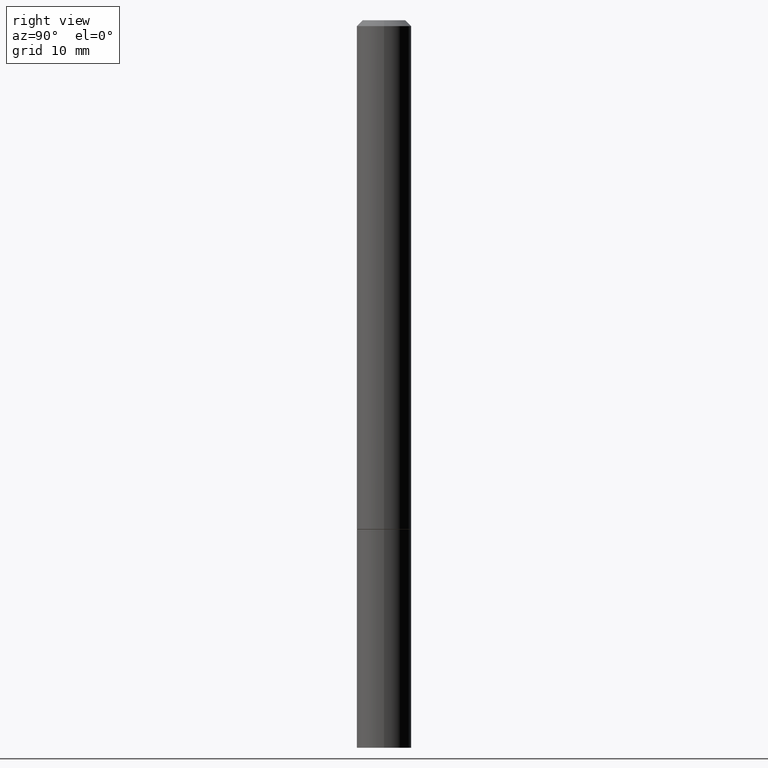
[diagram: clean part render]
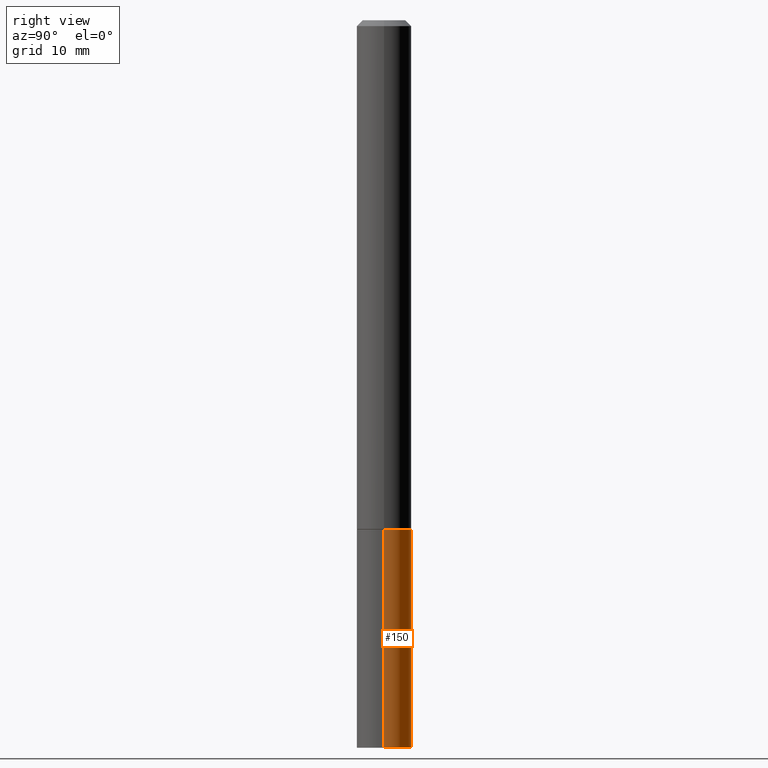
[diagram: same view with one face highlighted and labeled with its STEP entity id]
A machine part, right view. The second image highlights one B-rep face of the part: STEP entity #150.
In plain terms, the highlighted cylindrical surface (edge-blend (fillet) strip) has radius 2.3813 mm, axis along (-0, 0, 1).
Its self-contained STEP definition (entity closure, byte-faithful):
#11 = DIRECTION ( 'NONE',  ( 1.000000000000000000, -6.982962677686265922E-15, 4.876176775795935793E-29 ) ) ;
#24 = CIRCLE ( 'NONE', #124, 0.09375000000000001388 ) ;
#31 = DIRECTION ( 'NONE',  ( -2.445468806185136597E-29, 3.491481338843145583E-15, 1.000000000000000000 ) ) ;
#66 = DIRECTION ( 'NONE',  ( 1.000000000000000000, -6.982962677686261189E-15, 0.000000000000000000 ) ) ;
#68 = DIRECTION ( 'NONE',  ( -2.445468806185136597E-29, 3.491481338843145583E-15, 1.000000000000000000 ) ) ;
#74 = CARTESIAN_POINT ( 'NONE',  ( -0.09374999999999984734, -8.074050596074776650E-15, -2.500000000000000000 ) ) ;
#84 = AXIS2_PLACEMENT_3D ( 'NONE', #120, #31, #11 ) ;
#105 = EDGE_CURVE ( 'NONE', #321, #260, #291, .T. ) ;
#120 = CARTESIAN_POINT ( 'NONE',  ( 0.000000000000000000, 0.000000000000000000, 0.000000000000000000 ) ) ;
#124 = AXIS2_PLACEMENT_3D ( 'NONE', #218, #301, #337 ) ;
#128 = EDGE_CURVE ( 'NONE', #268, #336, #177, .T. ) ;
#145 = CARTESIAN_POINT ( 'NONE',  ( 0.09375000000000001388, -6.546527510330875041E-16, 4.571415727308690506E-30 ) ) ;
#149 = FACE_OUTER_BOUND ( 'NONE', #245, .T. ) ;
#150 = ADVANCED_FACE ( 'NONE', ( #149 ), #388, .T. ) ;
#162 = CARTESIAN_POINT ( 'NONE',  ( -0.09375000000000001388, -6.753264030266591277E-15, -1.750000000000000222 ) ) ;
#169 = AXIS2_PLACEMENT_3D ( 'NONE', #271, #68, #66 ) ;
#177 = LINE ( 'NONE', #145, #259 ) ;
#188 = CARTESIAN_POINT ( 'NONE',  ( 0.09375000000000001388, -6.764745094008592175E-15, -1.750000000000000222 ) ) ;
#195 = EDGE_CURVE ( 'NONE', #336, #260, #287, .T. ) ;
#204 = CARTESIAN_POINT ( 'NONE',  ( -0.09375000000000001388, 6.661338147750940229E-16, -4.611501647113973995E-30 ) ) ;
#205 = DIRECTION ( 'NONE',  ( -2.445468806185136877E-29, 3.491481338843145188E-15, 1.000000000000000000 ) ) ;
#218 = CARTESIAN_POINT ( 'NONE',  ( 6.113672015462842613E-29, -8.728703347107864943E-15, -2.500000000000000000 ) ) ;
#241 = CARTESIAN_POINT ( 'NONE',  ( 0.09374999999999984734, -9.371875034398942871E-15, -2.500000000000000000 ) ) ;
#245 = EDGE_LOOP ( 'NONE', ( #390, #272, #290, #286 ) ) ;
#259 = VECTOR ( 'NONE', #263, 39.37007874015748143 ) ;
#260 = VERTEX_POINT ( 'NONE', #162 ) ;
#263 = DIRECTION ( 'NONE',  ( -2.445468806185136877E-29, 3.491481338843145188E-15, 1.000000000000000000 ) ) ;
#268 = VERTEX_POINT ( 'NONE', #241 ) ;
#271 = CARTESIAN_POINT ( 'NONE',  ( 4.279570410823989044E-29, -6.110092342975505460E-15, -1.750000000000000222 ) ) ;
#272 = ORIENTED_EDGE ( 'NONE', *, *, #105, .T. ) ;
#275 = EDGE_CURVE ( 'NONE', #268, #321, #24, .T. ) ;
#286 = ORIENTED_EDGE ( 'NONE', *, *, #128, .F. ) ;
#287 = CIRCLE ( 'NONE', #169, 0.09375000000000001388 ) ;
#290 = ORIENTED_EDGE ( 'NONE', *, *, #195, .F. ) ;
#291 = LINE ( 'NONE', #204, #310 ) ;
#301 = DIRECTION ( 'NONE',  ( -2.445468806185136597E-29, 3.491481338843145583E-15, 1.000000000000000000 ) ) ;
#310 = VECTOR ( 'NONE', #205, 39.37007874015748143 ) ;
#321 = VERTEX_POINT ( 'NONE', #74 ) ;
#336 = VERTEX_POINT ( 'NONE', #188 ) ;
#337 = DIRECTION ( 'NONE',  ( 1.000000000000000000, -6.982962677686272233E-15, 0.000000000000000000 ) ) ;
#388 = CYLINDRICAL_SURFACE ( 'NONE', #84, 0.09375000000000001388 ) ;
#390 = ORIENTED_EDGE ( 'NONE', *, *, #275, .T. ) ;